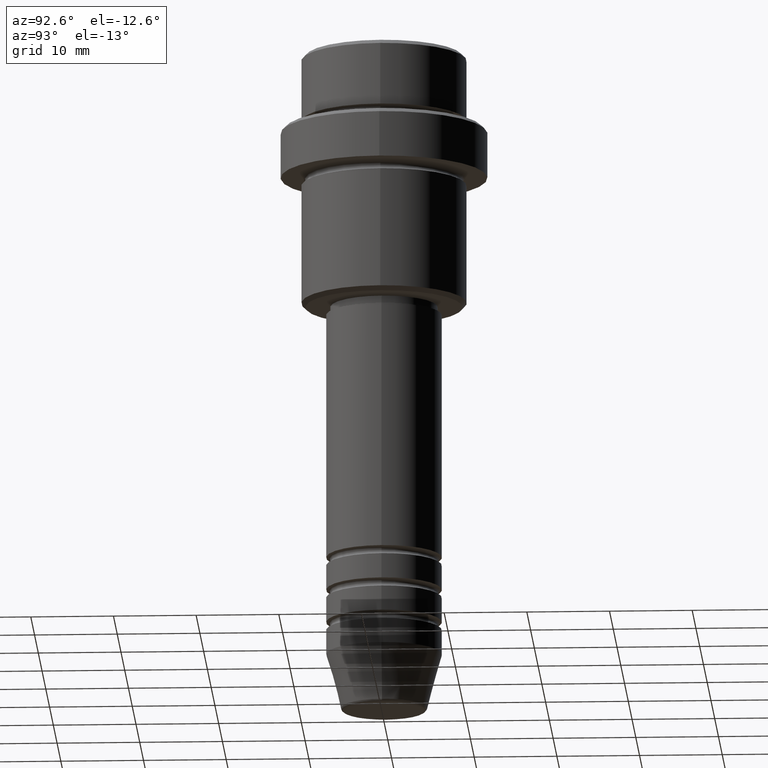
[diagram: clean part render]
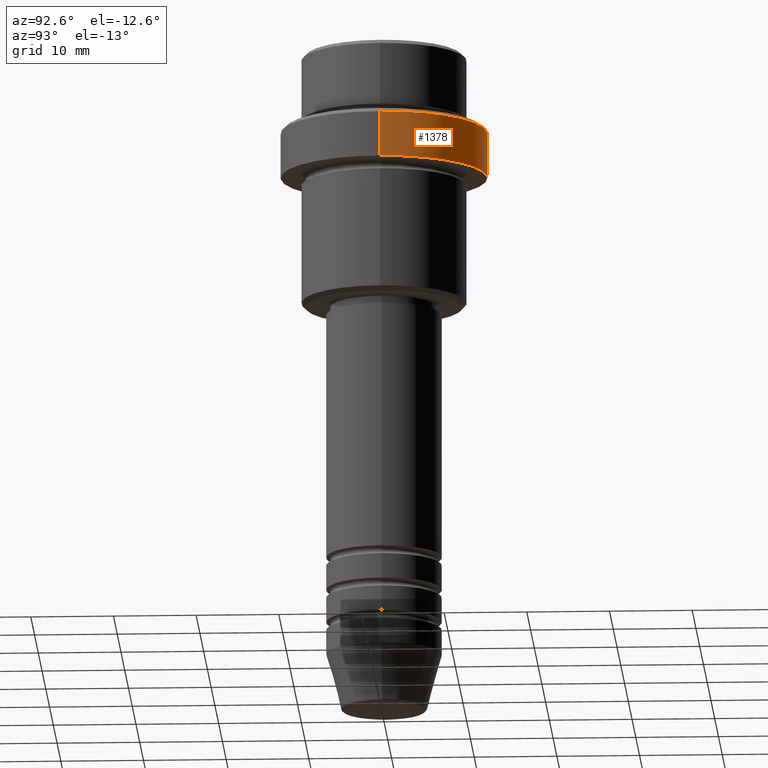
[diagram: same view with one face highlighted and labeled with its STEP entity id]
A machine part, auxiliary view. The second image highlights one B-rep face of the part: STEP entity #1378.
In plain terms, the highlighted cylindrical surface (partial cylindrical patch) has radius 12.5 mm, axis along (-0, -0, 1).
Its self-contained STEP definition (entity closure, byte-faithful):
#57 = EDGE_LOOP ( 'NONE', ( #234, #813, #531, #835 ) ) ;
#60 = AXIS2_PLACEMENT_3D ( 'NONE', #195, #1055, #954 ) ;
#195 = CARTESIAN_POINT ( 'NONE',  ( 0.000000000000000000, 0.000000000000000000, -9.500000000000005329 ) ) ;
#223 = CARTESIAN_POINT ( 'NONE',  ( 0.000000000000000000, 0.000000000000000000, 0.000000000000000000 ) ) ;
#234 = ORIENTED_EDGE ( 'NONE', *, *, #425, .T. ) ;
#255 = VERTEX_POINT ( 'NONE', #895 ) ;
#313 = VERTEX_POINT ( 'NONE', #458 ) ;
#381 = CIRCLE ( 'NONE', #60, 12.50000000000000000 ) ;
#421 = CYLINDRICAL_SURFACE ( 'NONE', #859, 12.50000000000000000 ) ;
#422 = VERTEX_POINT ( 'NONE', #874 ) ;
#425 = EDGE_CURVE ( 'NONE', #255, #313, #801, .T. ) ;
#458 = CARTESIAN_POINT ( 'NONE',  ( -12.50000000000000000, 1.530808498934191521E-15, -15.00000000000000000 ) ) ;
#531 = ORIENTED_EDGE ( 'NONE', *, *, #1340, .T. ) ;
#536 = FACE_OUTER_BOUND ( 'NONE', #57, .T. ) ;
#605 = CARTESIAN_POINT ( 'NONE',  ( -12.50000000000000000, 1.530808498934191521E-15, -9.500000000000005329 ) ) ;
#660 = DIRECTION ( 'NONE',  ( -0.000000000000000000, -0.000000000000000000, 1.000000000000000000 ) ) ;
#692 = EDGE_CURVE ( 'NONE', #255, #422, #1247, .T. ) ;
#701 = VERTEX_POINT ( 'NONE', #605 ) ;
#726 = DIRECTION ( 'NONE',  ( 1.000000000000000000, 0.000000000000000000, 0.000000000000000000 ) ) ;
#733 = VECTOR ( 'NONE', #1041, 1000.000000000000000 ) ;
#801 = CIRCLE ( 'NONE', #1123, 12.50000000000000000 ) ;
#813 = ORIENTED_EDGE ( 'NONE', *, *, #1319, .T. ) ;
#835 = ORIENTED_EDGE ( 'NONE', *, *, #692, .F. ) ;
#841 = DIRECTION ( 'NONE',  ( -0.000000000000000000, -0.000000000000000000, 1.000000000000000000 ) ) ;
#859 = AXIS2_PLACEMENT_3D ( 'NONE', #223, #841, #726 ) ;
#874 = CARTESIAN_POINT ( 'NONE',  ( 12.50000000000000000, 0.000000000000000000, -9.500000000000005329 ) ) ;
#895 = CARTESIAN_POINT ( 'NONE',  ( 12.50000000000000000, 0.000000000000000000, -15.00000000000000000 ) ) ;
#954 = DIRECTION ( 'NONE',  ( 1.000000000000000000, 0.000000000000000000, 0.000000000000000000 ) ) ;
#963 = DIRECTION ( 'NONE',  ( -0.000000000000000000, -0.000000000000000000, 1.000000000000000000 ) ) ;
#1041 = DIRECTION ( 'NONE',  ( -0.000000000000000000, -0.000000000000000000, 1.000000000000000000 ) ) ;
#1055 = DIRECTION ( 'NONE',  ( 0.000000000000000000, 0.000000000000000000, -1.000000000000000000 ) ) ;
#1091 = DIRECTION ( 'NONE',  ( 1.000000000000000000, 0.000000000000000000, 0.000000000000000000 ) ) ;
#1123 = AXIS2_PLACEMENT_3D ( 'NONE', #1204, #660, #1091 ) ;
#1140 = VECTOR ( 'NONE', #963, 1000.000000000000000 ) ;
#1204 = CARTESIAN_POINT ( 'NONE',  ( 0.000000000000000000, 0.000000000000000000, -15.00000000000000000 ) ) ;
#1239 = LINE ( 'NONE', #1305, #1140 ) ;
#1247 = LINE ( 'NONE', #1344, #733 ) ;
#1305 = CARTESIAN_POINT ( 'NONE',  ( -12.50000000000000000, 1.530808498934191521E-15, 0.000000000000000000 ) ) ;
#1319 = EDGE_CURVE ( 'NONE', #313, #701, #1239, .T. ) ;
#1340 = EDGE_CURVE ( 'NONE', #701, #422, #381, .T. ) ;
#1344 = CARTESIAN_POINT ( 'NONE',  ( 12.50000000000000000, 0.000000000000000000, 0.000000000000000000 ) ) ;
#1378 = ADVANCED_FACE ( 'NONE', ( #536 ), #421, .T. ) ;